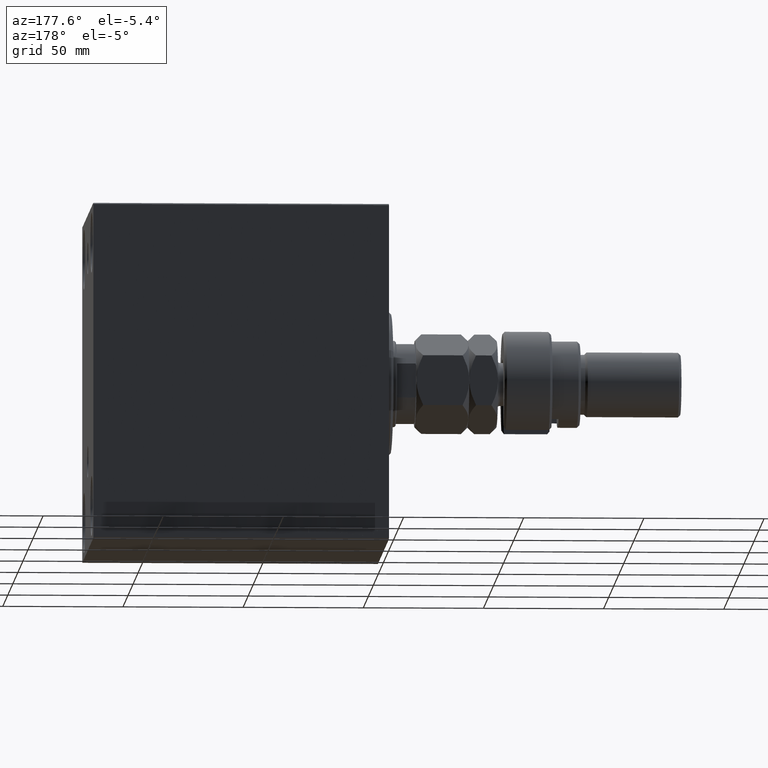
[diagram: clean part render]
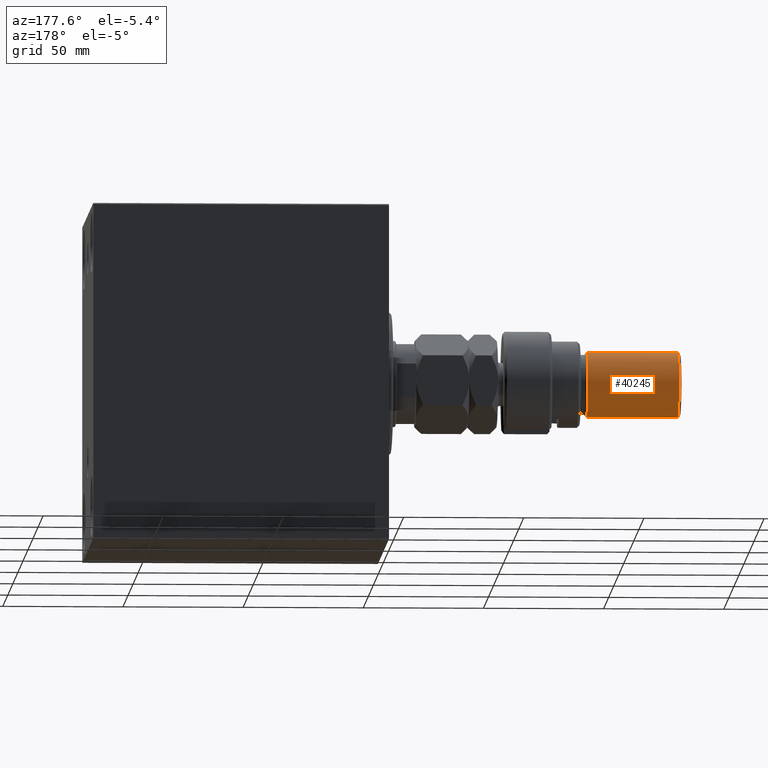
[diagram: same view with one face highlighted and labeled with its STEP entity id]
A machine part, auxiliary view. The second image highlights one B-rep face of the part: STEP entity #40245.
In plain terms, the highlighted cylindrical surface (edge-blend (fillet) strip) has radius 13.5 mm, axis along (1, -0, -0).
Its self-contained STEP definition (entity closure, byte-faithful):
#35 = CARTESIAN_POINT ( 'NONE',  ( -13.50000000000000000, 0.000000000000000000, 73.00000000000001421 ) ) ;
#180 = DIRECTION ( 'NONE',  ( -1.000000000000000000, 0.000000000000000000, 0.000000000000000000 ) ) ;
#382 = ORIENTED_EDGE ( 'NONE', *, *, #22357, .T. ) ;
#2956 = CARTESIAN_POINT ( 'NONE',  ( 0.000000000000000000, 0.000000000000000000, 34.99999999999999289 ) ) ;
#3495 = CARTESIAN_POINT ( 'NONE',  ( 0.000000000000000000, 0.000000000000000000, 74.00000000000001421 ) ) ;
#5194 = CIRCLE ( 'NONE', #33036, 13.50000000000000000 ) ;
#6572 = CYLINDRICAL_SURFACE ( 'NONE', #22618, 13.50000000000000000 ) ;
#6615 = VECTOR ( 'NONE', #27952, 1000.000000000000000 ) ;
#8592 = ORIENTED_EDGE ( 'NONE', *, *, #16926, .F. ) ;
#9122 = DIRECTION ( 'NONE',  ( 1.000000000000000000, 0.000000000000000000, 0.000000000000000000 ) ) ;
#9827 = VERTEX_POINT ( 'NONE', #35 ) ;
#11178 = VECTOR ( 'NONE', #13830, 1000.000000000000000 ) ;
#12675 = CARTESIAN_POINT ( 'NONE',  ( 0.000000000000000000, 0.000000000000000000, 73.00000000000001421 ) ) ;
#13830 = DIRECTION ( 'NONE',  ( -0.000000000000000000, -0.000000000000000000, -1.000000000000000000 ) ) ;
#16926 = EDGE_CURVE ( 'NONE', #9827, #23494, #42624, .T. ) ;
#17134 = EDGE_LOOP ( 'NONE', ( #382, #27875, #39402, #8592 ) ) ;
#17891 = FACE_OUTER_BOUND ( 'NONE', #17134, .T. ) ;
#20426 = CARTESIAN_POINT ( 'NONE',  ( 13.50000000000000000, 1.653273178848926867E-15, 74.00000000000001421 ) ) ;
#22357 = EDGE_CURVE ( 'NONE', #9827, #43511, #5194, .T. ) ;
#22618 = AXIS2_PLACEMENT_3D ( 'NONE', #3495, #28269, #180 ) ;
#23494 = VERTEX_POINT ( 'NONE', #39303 ) ;
#25225 = CARTESIAN_POINT ( 'NONE',  ( 13.50000000000000000, 1.653273178848926867E-15, 73.00000000000001421 ) ) ;
#27875 = ORIENTED_EDGE ( 'NONE', *, *, #35294, .T. ) ;
#27952 = DIRECTION ( 'NONE',  ( -0.000000000000000000, -0.000000000000000000, -1.000000000000000000 ) ) ;
#28269 = DIRECTION ( 'NONE',  ( -0.000000000000000000, -0.000000000000000000, -1.000000000000000000 ) ) ;
#28520 = CARTESIAN_POINT ( 'NONE',  ( 13.50000000000000000, 1.653273178848926867E-15, 34.99999999999999289 ) ) ;
#29145 = CIRCLE ( 'NONE', #34428, 13.50000000000000000 ) ;
#30300 = VERTEX_POINT ( 'NONE', #28520 ) ;
#30803 = LINE ( 'NONE', #20426, #6615 ) ;
#32419 = EDGE_CURVE ( 'NONE', #30300, #23494, #29145, .T. ) ;
#33036 = AXIS2_PLACEMENT_3D ( 'NONE', #12675, #41467, #9122 ) ;
#34428 = AXIS2_PLACEMENT_3D ( 'NONE', #2956, #45676, #35269 ) ;
#35269 = DIRECTION ( 'NONE',  ( 1.000000000000000000, 0.000000000000000000, 0.000000000000000000 ) ) ;
#35294 = EDGE_CURVE ( 'NONE', #43511, #30300, #30803, .T. ) ;
#39303 = CARTESIAN_POINT ( 'NONE',  ( -13.50000000000000000, 0.000000000000000000, 34.99999999999999289 ) ) ;
#39402 = ORIENTED_EDGE ( 'NONE', *, *, #32419, .T. ) ;
#40245 = ADVANCED_FACE ( 'NONE', ( #17891 ), #6572, .T. ) ;
#41467 = DIRECTION ( 'NONE',  ( 0.000000000000000000, 0.000000000000000000, -1.000000000000000000 ) ) ;
#42624 = LINE ( 'NONE', #46189, #11178 ) ;
#43511 = VERTEX_POINT ( 'NONE', #25225 ) ;
#45676 = DIRECTION ( 'NONE',  ( -0.000000000000000000, -0.000000000000000000, 1.000000000000000000 ) ) ;
#46189 = CARTESIAN_POINT ( 'NONE',  ( -13.50000000000000000, 0.000000000000000000, 74.00000000000001421 ) ) ;